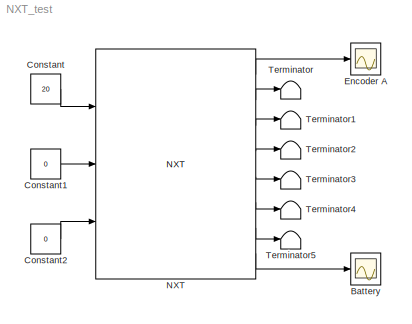
MODEL NXT_test
KIND model
BLOCK [Scope] Battery
  Floating = off
  NumInputPorts = 1
  Ports = [1]
  SID = 12
  ScopeSpecificationString = C++SS(StrPVP('Location','[188, 390, 512, 629]'),StrPVP('Open','off'),MxPVP('AxesTitles',53,'struct(''axes1'',''%<SignalLabel>'')'),StrPVP('YMin','8610'),StrPVP('YMax','8700'),StrPVP('SaveName','ScopeData1'),StrPVP('DataFormat','StructureWithTime'),StrPVP('BlockParamSampleTime','0'),StrPVP('LimitDataPoints','on'),StrPVP('Decimation','1'),StrPVP('BlockParamSampleInput','off'))
BLOCK [Constant] Constant
  SID = 2
  SampleTime = 0.01
  Value = 20
BLOCK [Constant] Constant1
  SID = 3
  SampleTime = 0.01
  Value = 0
BLOCK [Constant] Constant2
  SID = 4
  SampleTime = 0.01
  Value = 0
BLOCK [Scope] Encoder A
  Floating = off
  NumInputPorts = 1
  Ports = [1]
  SID = 11
  ScopeSpecificationString = C++SS(StrPVP('Location','[188, 390, 512, 629]'),StrPVP('Open','off'),MxPVP('AxesTitles',53,'struct(''axes1'',''%<SignalLabel>'')'),StrPVP('YMin','1800'),StrPVP('YMax','2900'),StrPVP('DataFormat','StructureWithTime'),StrPVP('BlockParamSampleTime','0'),StrPVP('LimitDataPoints','on'),StrPVP('Decimation','1'),StrPVP('BlockParamSampleInput','off'))
BLOCK [Reference] NXT  REF=rpi_blkst/NXT  (lib defined in mdl_5f9edbe601a8, slx_830431f926a7)
  Ports = [3, 8]
  SID = 1
  SourceBlock = rpi_blkst/NXT
  SourceProductName = RPI Blockset
  SourceType = LEGO NXT
  rpi_mask_Ts = 0.01
  rpi_mask_id = 1
BLOCK [Terminator] Terminator
  SID = 5
BLOCK [Terminator] Terminator1
  SID = 6
BLOCK [Terminator] Terminator2
  SID = 7
BLOCK [Terminator] Terminator3
  SID = 8
BLOCK [Terminator] Terminator4
  SID = 9
BLOCK [Terminator] Terminator5
  SID = 10
LINE Constant1:1 -> NXT:2
LINE Constant2:1 -> NXT:3
LINE Constant:1 -> NXT:1
LINE NXT:1 -> Encoder A:1
LINE NXT:2 -> Terminator:1
LINE NXT:3 -> Terminator1:1
LINE NXT:4 -> Terminator2:1
LINE NXT:5 -> Terminator3:1
LINE NXT:6 -> Terminator4:1
LINE NXT:7 -> Terminator5:1
LINE NXT:8 -> Battery:1
